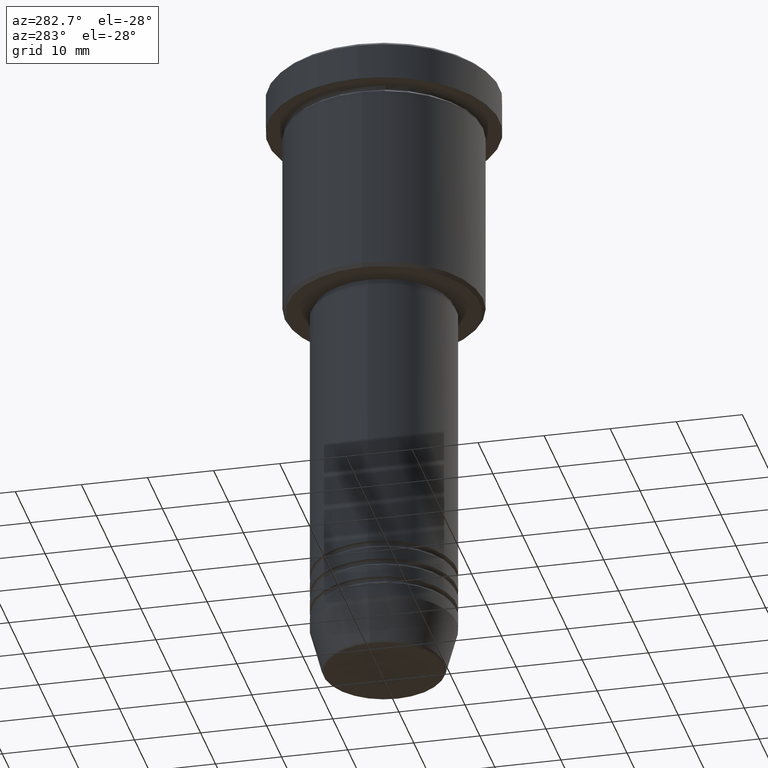
[diagram: clean part render]
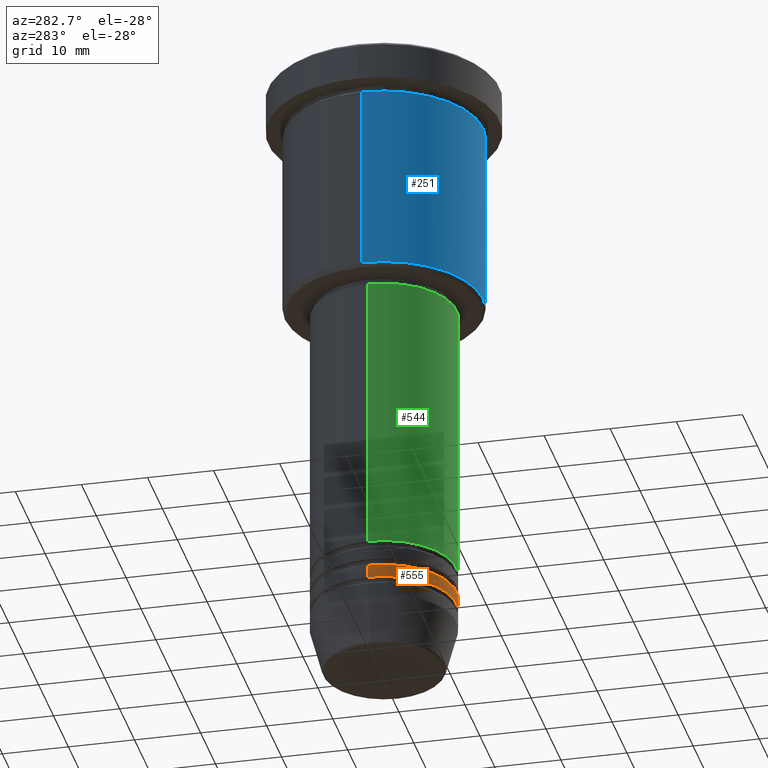
[diagram: same view with three faces highlighted in distinct colors, each labeled with its STEP entity id]
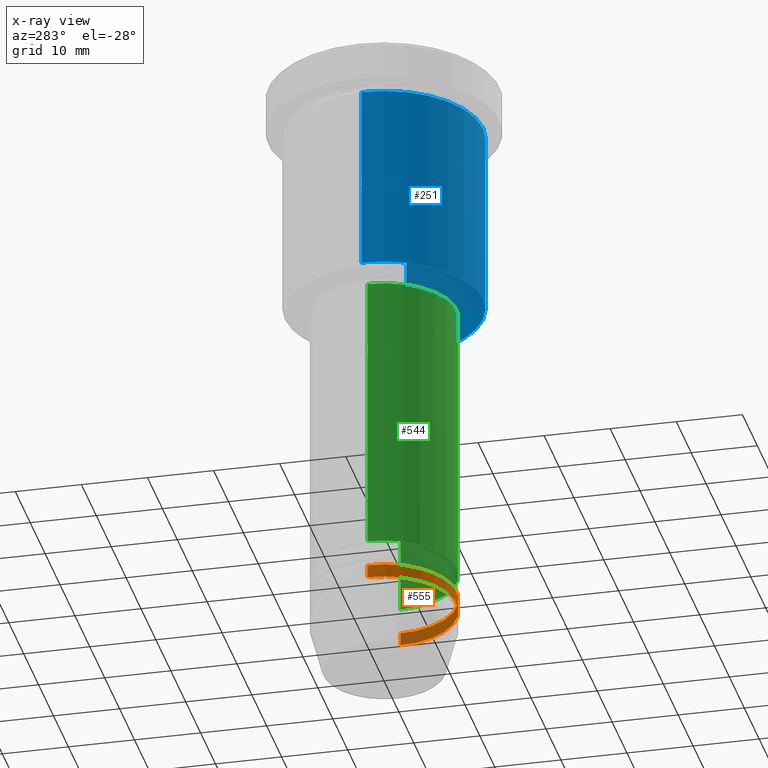
[diagram: x-ray of the same camera — body ghosted, the three highlighted faces saturated]
A machine part, auxiliary view with three faces highlighted in distinct colors.
The next image is the same camera in x-ray (body ghosted, the three faces saturated) — at least one of them is partly hidden behind the body in this view.
Their STEP definitions:

[orange] entity #555 — the highlighted cylindrical surface (partial cylindrical patch) has radius 11 mm, axis along (-0, -0, 1).
#1 = ORIENTED_EDGE ( 'NONE', *, *, #327, .F. ) ;
#6 = ORIENTED_EDGE ( 'NONE', *, *, #724, .T. ) ;
#40 = AXIS2_PLACEMENT_3D ( 'NONE', #175, #1097, #272 ) ;
#92 = VECTOR ( 'NONE', #486, 1000.000000000000000 ) ;
#147 = LINE ( 'NONE', #874, #427 ) ;
#175 = CARTESIAN_POINT ( 'NONE',  ( 0.000000000000000000, 0.000000000000000000, -83.99999999999997158 ) ) ;
#272 = DIRECTION ( 'NONE',  ( 1.000000000000000000, 0.000000000000000000, 0.000000000000000000 ) ) ;
#292 = CARTESIAN_POINT ( 'NONE',  ( 0.000000000000000000, 0.000000000000000000, 0.000000000000000000 ) ) ;
#295 = CARTESIAN_POINT ( 'NONE',  ( 11.00000000000000000, 0.000000000000000000, -85.99999999999998579 ) ) ;
#307 = EDGE_LOOP ( 'NONE', ( #1, #6, #978, #632 ) ) ;
#309 = DIRECTION ( 'NONE',  ( 1.000000000000000000, 0.000000000000000000, 0.000000000000000000 ) ) ;
#327 = EDGE_CURVE ( 'NONE', #639, #1059, #147, .T. ) ;
#346 = DIRECTION ( 'NONE',  ( 1.000000000000000000, 0.000000000000000000, 0.000000000000000000 ) ) ;
#427 = VECTOR ( 'NONE', #1073, 1000.000000000000000 ) ;
#442 = VERTEX_POINT ( 'NONE', #623 ) ;
#471 = EDGE_CURVE ( 'NONE', #497, #442, #912, .T. ) ;
#486 = DIRECTION ( 'NONE',  ( -0.000000000000000000, -0.000000000000000000, 1.000000000000000000 ) ) ;
#497 = VERTEX_POINT ( 'NONE', #295 ) ;
#516 = CARTESIAN_POINT ( 'NONE',  ( -11.00000000000000000, 1.347111479062088405E-15, -85.99999999999998579 ) ) ;
#526 = DIRECTION ( 'NONE',  ( -0.000000000000000000, -0.000000000000000000, 1.000000000000000000 ) ) ;
#555 = ADVANCED_FACE ( 'NONE', ( #850 ), #580, .T. ) ;
#559 = CIRCLE ( 'NONE', #40, 11.00000000000000000 ) ;
#580 = CYLINDRICAL_SURFACE ( 'NONE', #1048, 11.00000000000000000 ) ;
#623 = CARTESIAN_POINT ( 'NONE',  ( 11.00000000000000000, 0.000000000000000000, -83.99999999999997158 ) ) ;
#632 = ORIENTED_EDGE ( 'NONE', *, *, #845, .F. ) ;
#639 = VERTEX_POINT ( 'NONE', #516 ) ;
#647 = CARTESIAN_POINT ( 'NONE',  ( -11.00000000000000000, 1.347111479062088405E-15, -83.99999999999997158 ) ) ;
#705 = CARTESIAN_POINT ( 'NONE',  ( 0.000000000000000000, 0.000000000000000000, -85.99999999999998579 ) ) ;
#724 = EDGE_CURVE ( 'NONE', #639, #497, #1155, .T. ) ;
#845 = EDGE_CURVE ( 'NONE', #1059, #442, #559, .T. ) ;
#850 = FACE_OUTER_BOUND ( 'NONE', #307, .T. ) ;
#874 = CARTESIAN_POINT ( 'NONE',  ( -11.00000000000000000, 1.347111479062088405E-15, 0.000000000000000000 ) ) ;
#912 = LINE ( 'NONE', #931, #92 ) ;
#931 = CARTESIAN_POINT ( 'NONE',  ( 11.00000000000000000, 0.000000000000000000, 0.000000000000000000 ) ) ;
#978 = ORIENTED_EDGE ( 'NONE', *, *, #471, .T. ) ;
#983 = AXIS2_PLACEMENT_3D ( 'NONE', #705, #526, #346 ) ;
#1023 = DIRECTION ( 'NONE',  ( -0.000000000000000000, -0.000000000000000000, 1.000000000000000000 ) ) ;
#1048 = AXIS2_PLACEMENT_3D ( 'NONE', #292, #1023, #309 ) ;
#1059 = VERTEX_POINT ( 'NONE', #647 ) ;
#1073 = DIRECTION ( 'NONE',  ( -0.000000000000000000, -0.000000000000000000, 1.000000000000000000 ) ) ;
#1097 = DIRECTION ( 'NONE',  ( -0.000000000000000000, -0.000000000000000000, 1.000000000000000000 ) ) ;
#1155 = CIRCLE ( 'NONE', #983, 11.00000000000000000 ) ;

[blue] entity #251 — the highlighted cylindrical surface (partial cylindrical patch) has radius 15 mm, axis along (-0, -0, 1).
#33 = EDGE_LOOP ( 'NONE', ( #287, #450, #864, #999 ) ) ;
#39 = DIRECTION ( 'NONE',  ( 1.000000000000000000, 0.000000000000000000, 0.000000000000000000 ) ) ;
#53 = AXIS2_PLACEMENT_3D ( 'NONE', #87, #348, #261 ) ;
#58 = CARTESIAN_POINT ( 'NONE',  ( -15.00000000000000000, 1.836970198721029589E-15, -6.999999999999995559 ) ) ;
#87 = CARTESIAN_POINT ( 'NONE',  ( 0.000000000000000000, 0.000000000000000000, -6.999999999999995559 ) ) ;
#101 = VECTOR ( 'NONE', #1167, 1000.000000000000000 ) ;
#151 = FACE_OUTER_BOUND ( 'NONE', #33, .T. ) ;
#207 = DIRECTION ( 'NONE',  ( -0.000000000000000000, -0.000000000000000000, 1.000000000000000000 ) ) ;
#215 = VECTOR ( 'NONE', #1183, 1000.000000000000000 ) ;
#251 = ADVANCED_FACE ( 'NONE', ( #151 ), #602, .T. ) ;
#261 = DIRECTION ( 'NONE',  ( 1.000000000000000000, 0.000000000000000000, 0.000000000000000000 ) ) ;
#279 = CIRCLE ( 'NONE', #549, 15.00000000000000000 ) ;
#284 = CARTESIAN_POINT ( 'NONE',  ( 15.00000000000000000, 0.000000000000000000, -6.999999999999995559 ) ) ;
#287 = ORIENTED_EDGE ( 'NONE', *, *, #790, .F. ) ;
#348 = DIRECTION ( 'NONE',  ( -0.000000000000000000, -0.000000000000000000, 1.000000000000000000 ) ) ;
#352 = LINE ( 'NONE', #818, #101 ) ;
#357 = LINE ( 'NONE', #1091, #215 ) ;
#377 = CARTESIAN_POINT ( 'NONE',  ( 0.000000000000000000, 0.000000000000000000, -35.50000000000001421 ) ) ;
#403 = VERTEX_POINT ( 'NONE', #905 ) ;
#413 = AXIS2_PLACEMENT_3D ( 'NONE', #977, #604, #39 ) ;
#450 = ORIENTED_EDGE ( 'NONE', *, *, #519, .T. ) ;
#453 = EDGE_CURVE ( 'NONE', #630, #1132, #1098, .T. ) ;
#519 = EDGE_CURVE ( 'NONE', #1101, #403, #279, .T. ) ;
#549 = AXIS2_PLACEMENT_3D ( 'NONE', #377, #207, #575 ) ;
#575 = DIRECTION ( 'NONE',  ( -1.000000000000000000, 0.000000000000000000, 0.000000000000000000 ) ) ;
#602 = CYLINDRICAL_SURFACE ( 'NONE', #413, 15.00000000000000000 ) ;
#604 = DIRECTION ( 'NONE',  ( -0.000000000000000000, -0.000000000000000000, 1.000000000000000000 ) ) ;
#630 = VERTEX_POINT ( 'NONE', #58 ) ;
#775 = EDGE_CURVE ( 'NONE', #403, #1132, #357, .T. ) ;
#790 = EDGE_CURVE ( 'NONE', #1101, #630, #352, .T. ) ;
#812 = CARTESIAN_POINT ( 'NONE',  ( -15.00000000000000000, 1.836970198721029589E-15, -35.50000000000001421 ) ) ;
#818 = CARTESIAN_POINT ( 'NONE',  ( -15.00000000000000000, 1.836970198721029589E-15, 0.000000000000000000 ) ) ;
#864 = ORIENTED_EDGE ( 'NONE', *, *, #775, .T. ) ;
#905 = CARTESIAN_POINT ( 'NONE',  ( 15.00000000000000000, 0.000000000000000000, -35.50000000000001421 ) ) ;
#977 = CARTESIAN_POINT ( 'NONE',  ( 0.000000000000000000, 0.000000000000000000, 0.000000000000000000 ) ) ;
#999 = ORIENTED_EDGE ( 'NONE', *, *, #453, .F. ) ;
#1091 = CARTESIAN_POINT ( 'NONE',  ( 15.00000000000000000, 0.000000000000000000, 0.000000000000000000 ) ) ;
#1098 = CIRCLE ( 'NONE', #53, 15.00000000000000000 ) ;
#1101 = VERTEX_POINT ( 'NONE', #812 ) ;
#1132 = VERTEX_POINT ( 'NONE', #284 ) ;
#1167 = DIRECTION ( 'NONE',  ( -0.000000000000000000, -0.000000000000000000, 1.000000000000000000 ) ) ;
#1183 = DIRECTION ( 'NONE',  ( -0.000000000000000000, -0.000000000000000000, 1.000000000000000000 ) ) ;

[green] entity #544 — the highlighted cylindrical surface (partial cylindrical patch) has radius 11 mm, axis along (-0, -0, 1).
#18 = LINE ( 'NONE', #388, #459 ) ;
#29 = VERTEX_POINT ( 'NONE', #678 ) ;
#69 = CIRCLE ( 'NONE', #621, 11.00000000000000000 ) ;
#132 = CARTESIAN_POINT ( 'NONE',  ( -11.00000000000000000, 1.347111479062088405E-15, -36.99999999999997868 ) ) ;
#136 = DIRECTION ( 'NONE',  ( -0.000000000000000000, -0.000000000000000000, 1.000000000000000000 ) ) ;
#141 = DIRECTION ( 'NONE',  ( -0.000000000000000000, -0.000000000000000000, 1.000000000000000000 ) ) ;
#148 = EDGE_CURVE ( 'NONE', #652, #759, #221, .T. ) ;
#166 = EDGE_CURVE ( 'NONE', #955, #759, #1123, .T. ) ;
#214 = DIRECTION ( 'NONE',  ( -0.000000000000000000, -0.000000000000000000, 1.000000000000000000 ) ) ;
#221 = LINE ( 'NONE', #588, #452 ) ;
#248 = CARTESIAN_POINT ( 'NONE',  ( 0.000000000000000000, 0.000000000000000000, -36.99999999999997868 ) ) ;
#336 = DIRECTION ( 'NONE',  ( 1.000000000000000000, 0.000000000000000000, 0.000000000000000000 ) ) ;
#388 = CARTESIAN_POINT ( 'NONE',  ( -11.00000000000000000, 1.347111479062088405E-15, 0.000000000000000000 ) ) ;
#402 = EDGE_CURVE ( 'NONE', #29, #652, #69, .T. ) ;
#452 = VECTOR ( 'NONE', #136, 1000.000000000000000 ) ;
#459 = VECTOR ( 'NONE', #756, 1000.000000000000000 ) ;
#480 = ORIENTED_EDGE ( 'NONE', *, *, #148, .T. ) ;
#544 = ADVANCED_FACE ( 'NONE', ( #665 ), #1014, .T. ) ;
#550 = ORIENTED_EDGE ( 'NONE', *, *, #166, .F. ) ;
#588 = CARTESIAN_POINT ( 'NONE',  ( 11.00000000000000000, 0.000000000000000000, 0.000000000000000000 ) ) ;
#621 = AXIS2_PLACEMENT_3D ( 'NONE', #627, #1161, #642 ) ;
#627 = CARTESIAN_POINT ( 'NONE',  ( 0.000000000000000000, 0.000000000000000000, -79.99999999999997158 ) ) ;
#642 = DIRECTION ( 'NONE',  ( 1.000000000000000000, 0.000000000000000000, 0.000000000000000000 ) ) ;
#652 = VERTEX_POINT ( 'NONE', #1150 ) ;
#658 = CARTESIAN_POINT ( 'NONE',  ( 0.000000000000000000, 0.000000000000000000, 0.000000000000000000 ) ) ;
#665 = FACE_OUTER_BOUND ( 'NONE', #875, .T. ) ;
#678 = CARTESIAN_POINT ( 'NONE',  ( -11.00000000000000000, 1.347111479062088405E-15, -79.99999999999997158 ) ) ;
#756 = DIRECTION ( 'NONE',  ( -0.000000000000000000, -0.000000000000000000, 1.000000000000000000 ) ) ;
#759 = VERTEX_POINT ( 'NONE', #834 ) ;
#834 = CARTESIAN_POINT ( 'NONE',  ( 11.00000000000000000, 0.000000000000000000, -36.99999999999997868 ) ) ;
#875 = EDGE_LOOP ( 'NONE', ( #1149, #1128, #480, #550 ) ) ;
#915 = AXIS2_PLACEMENT_3D ( 'NONE', #248, #141, #336 ) ;
#941 = DIRECTION ( 'NONE',  ( 1.000000000000000000, 0.000000000000000000, 0.000000000000000000 ) ) ;
#955 = VERTEX_POINT ( 'NONE', #132 ) ;
#1006 = AXIS2_PLACEMENT_3D ( 'NONE', #658, #214, #941 ) ;
#1010 = EDGE_CURVE ( 'NONE', #29, #955, #18, .T. ) ;
#1014 = CYLINDRICAL_SURFACE ( 'NONE', #1006, 11.00000000000000000 ) ;
#1123 = CIRCLE ( 'NONE', #915, 11.00000000000000000 ) ;
#1128 = ORIENTED_EDGE ( 'NONE', *, *, #402, .T. ) ;
#1149 = ORIENTED_EDGE ( 'NONE', *, *, #1010, .F. ) ;
#1150 = CARTESIAN_POINT ( 'NONE',  ( 11.00000000000000000, 0.000000000000000000, -79.99999999999997158 ) ) ;
#1161 = DIRECTION ( 'NONE',  ( -0.000000000000000000, -0.000000000000000000, 1.000000000000000000 ) ) ;